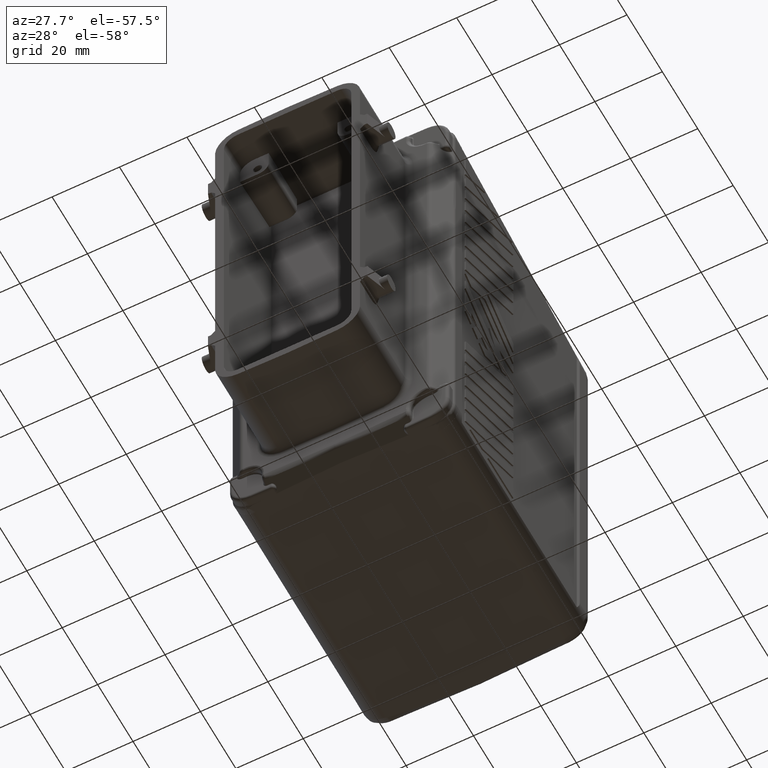
[diagram: clean part render]
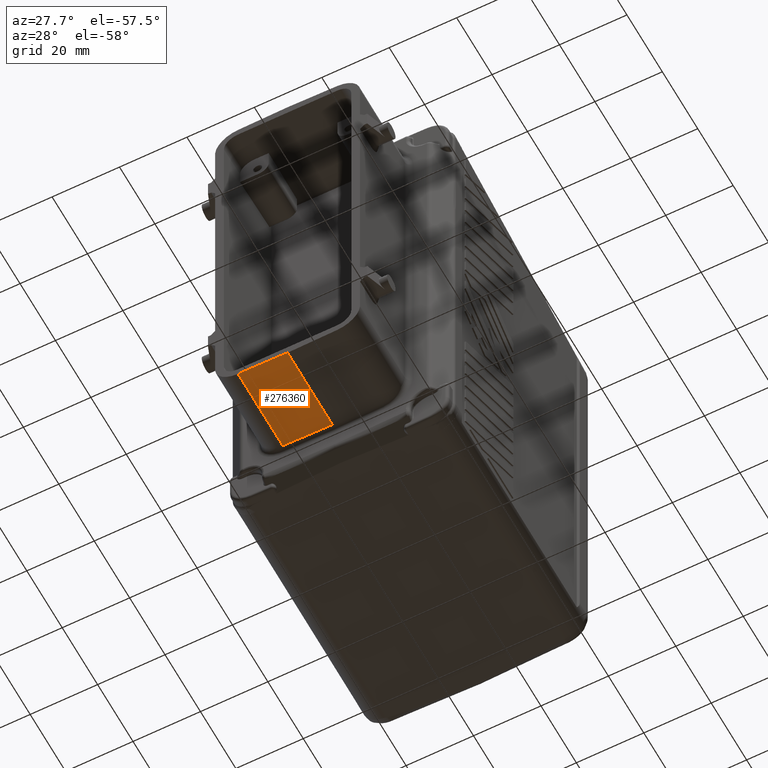
[diagram: same view with one face highlighted and labeled with its STEP entity id]
A machine part, auxiliary view. The second image highlights one B-rep face of the part: STEP entity #276360.
In plain terms, the highlighted planar face has unit normal (-0.0262, 0, -0.9997).
Its self-contained STEP definition (entity closure, byte-faithful):
#186260=CARTESIAN_POINT('',(46.2122392391191,19.780754524589,
-63.9419195492284));
#186270=VERTEX_POINT('',#186260);
#186300=CARTESIAN_POINT('',(0.,19.780754524589,-62.7318094769762));
#186310=DIRECTION('',(0.999657324975557,-3.46944695195361E-18,
-0.0261769483078759));
#186320=VECTOR('',#186310,1.);
#186330=LINE('',#186300,#186320);
#186340=CARTESIAN_POINT('',(31.9417440336335,19.780754524589,
-63.568233481024));
#186350=VERTEX_POINT('',#186340);
#186360=EDGE_CURVE('',#186350,#186270,#186330,.T.);
#274890=CARTESIAN_POINT('',(46.6227085308365,20.0000000000222,
-63.9526680659078));
#274900=DIRECTION('',(-2.40356057059527E-31,1.,1.62312834311911E-32));
#274910=VECTOR('',#274900,1.);
#274920=LINE('',#274890,#274910);
#274930=CARTESIAN_POINT('',(46.6227085308365,19.7826497780822,
-63.9526680659078));
#274940=VERTEX_POINT('',#274930);
#274950=CARTESIAN_POINT('',(46.6227085308366,45.036608000024,
-63.9526680659078));
#274960=VERTEX_POINT('',#274950);
#274970=EDGE_CURVE('',#274940,#274960,#274920,.T.);
#275570=CARTESIAN_POINT('',(31.9417440336335,45.036608000024,
-63.568233481024));
#275580=VERTEX_POINT('',#275570);
#275610=CARTESIAN_POINT('',(-0.0207345775339251,45.036608000024,
-62.7312665229551));
#275620=DIRECTION('',(0.999657324975557,0.,-0.0261769483078759));
#275630=VECTOR('',#275620,1.);
#275640=LINE('',#275610,#275630);
#275650=EDGE_CURVE('',#275580,#274960,#275640,.T.);
#276010=CARTESIAN_POINT('',(-0.0599999999851661,19.5671024321547,
-62.7302383216824));
#276020=DIRECTION('',(-0.999646676442327,-0.00461565309198208,
0.0261766694662199));
#276030=VECTOR('',#276020,1.);
#276040=LINE('',#276010,#276030);
#276050=EDGE_CURVE('',#274940,#186270,#276040,.T.);
#276190=CARTESIAN_POINT('',(-0.0599999999851661,19.7156880011933,
-62.7302383216824));
#276200=DIRECTION('',(-0.0261769483078759,9.93393329461251E-33,
-0.999657324975557));
#276210=DIRECTION('',(-0.999657324975557,0.,0.0261769483078759));
#276220=AXIS2_PLACEMENT_3D('',#276190,#276200,#276210);
#276230=PLANE('',#276220);
#276240=CARTESIAN_POINT('',(31.9417440336335,20.0000000000222,
-63.568233481024));
#276250=DIRECTION('',(-2.40356057059527E-31,1.,1.62312834311912E-32));
#276260=VECTOR('',#276250,1.);
#276270=LINE('',#276240,#276260);
#276280=EDGE_CURVE('',#186350,#275580,#276270,.T.);
#276290=ORIENTED_EDGE('',*,*,#276280,.T.);
#276300=ORIENTED_EDGE('',*,*,#186360,.F.);
#276310=ORIENTED_EDGE('',*,*,#276050,.T.);
#276320=ORIENTED_EDGE('',*,*,#274970,.F.);
#276330=ORIENTED_EDGE('',*,*,#275650,.T.);
#276340=EDGE_LOOP('',(#276330,#276320,#276310,#276300,#276290));
#276350=FACE_OUTER_BOUND('',#276340,.T.);
#276360=ADVANCED_FACE('',(#276350),#276230,.T.);